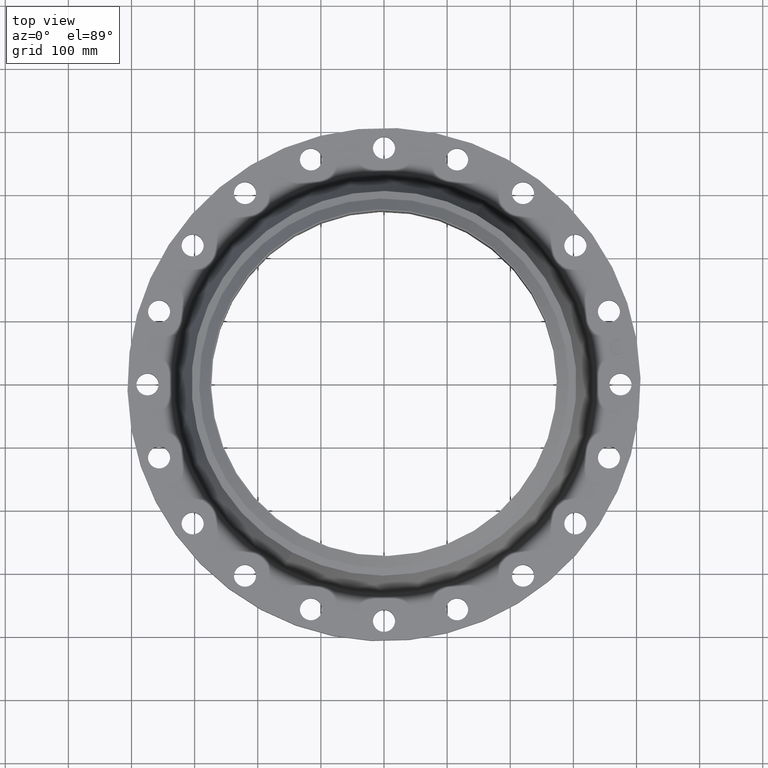
[diagram: clean part render]
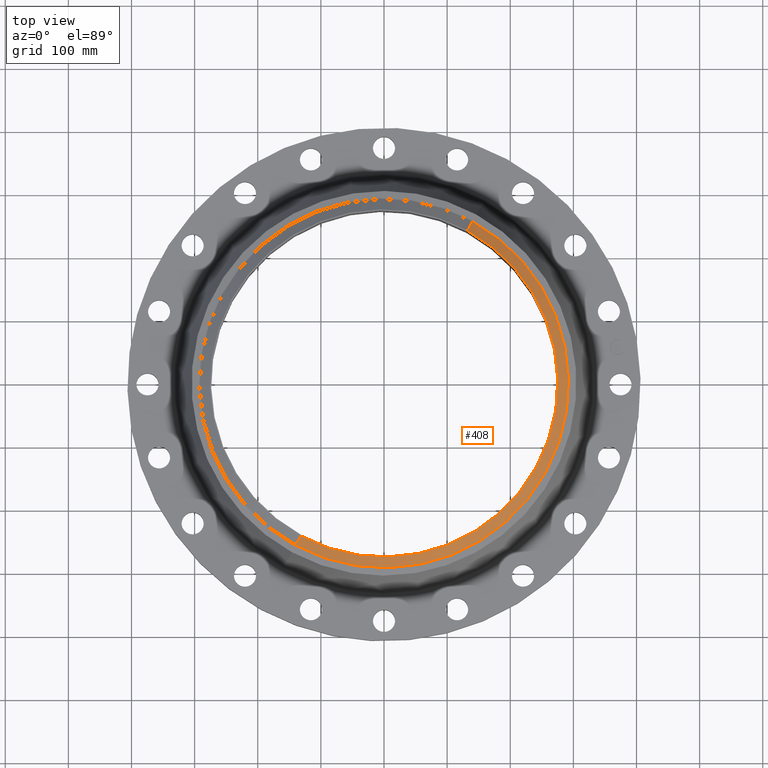
[diagram: same view with one face highlighted and labeled with its STEP entity id]
A machine part, top view. The second image highlights one B-rep face of the part: STEP entity #408.
In plain terms, the highlighted conical surface has half-angle 52.5 deg.
Its self-contained STEP definition (entity closure, byte-faithful):
#356=AXIS2_PLACEMENT_3D('Circle Axis2P3D',#354,#355,$) ;
#381=AXIS2_PLACEMENT_3D('Cone Axis2P3D',#378,#379,#380) ;
#399=AXIS2_PLACEMENT_3D('Circle Axis2P3D',#397,#398,$) ;
#344=CARTESIAN_POINT('Vertex',(-5.51662188622,-10.0981086281,5.49108306753)) ;
#351=CARTESIAN_POINT('Vertex',(5.51662188622,10.0981086281,5.49108306753)) ;
#354=CARTESIAN_POINT('Axis2P3D Location',(0.,0.,5.49108306753)) ;
#378=CARTESIAN_POINT('Axis2P3D Location',(0.,0.,6.00000000002)) ;
#383=CARTESIAN_POINT('Line Origine',(-5.35763635705,-9.80708756898,5.74554153378)) ;
#387=CARTESIAN_POINT('Vertex',(-5.19865082788,-9.5160665099,6.00000000002)) ;
#390=CARTESIAN_POINT('Line Origine',(5.35763635705,9.80708756898,5.74554153378)) ;
#394=CARTESIAN_POINT('Vertex',(5.19865082788,9.5160665099,6.00000000002)) ;
#397=CARTESIAN_POINT('Axis2P3D Location',(0.,0.,6.00000000002)) ;
#355=DIRECTION('Axis2P3D Direction',(0.,-0.,-0.0393700787402)) ;
#379=DIRECTION('Axis2P3D Direction',(-0.,-0.,-0.0393700787402)) ;
#380=DIRECTION('Axis2P3D XDirection',(-0.0188750212049,-0.0345504945626,0.)) ;
#384=DIRECTION('Vector Direction',(-0.014974561121,-0.02741075027,-0.023966985394)) ;
#391=DIRECTION('Vector Direction',(0.014974561121,0.02741075027,-0.023966985394)) ;
#398=DIRECTION('Axis2P3D Direction',(0.,-0.,-0.0393700787402)) ;
#385=VECTOR('Line Direction',#384,0.0393700787402) ;
#392=VECTOR('Line Direction',#391,0.0393700787402) ;
#403=ORIENTED_EDGE('',*,*,#389,.T.) ;
#404=ORIENTED_EDGE('',*,*,#358,.F.) ;
#405=ORIENTED_EDGE('',*,*,#396,.F.) ;
#406=ORIENTED_EDGE('',*,*,#401,.T.) ;
#408=ADVANCED_FACE('PartBody',(#407),#382,.T.) ;
#357=CIRCLE('generated circle',#356,11.5067334591) ;
#400=CIRCLE('generated circle',#399,10.8435) ;
#382=CONICAL_SURFACE('Cone',#381,10.8435,0.916297857297) ;
#358=EDGE_CURVE('',#352,#345,#357,.T.) ;
#389=EDGE_CURVE('',#388,#345,#386,.T.) ;
#396=EDGE_CURVE('',#395,#352,#393,.T.) ;
#401=EDGE_CURVE('',#395,#388,#400,.T.) ;
#402=EDGE_LOOP('',(#403,#404,#405,#406)) ;
#407=FACE_OUTER_BOUND('',#402,.T.) ;
#386=LINE('Line',#383,#385) ;
#393=LINE('Line',#390,#392) ;
#345=VERTEX_POINT('',#344) ;
#352=VERTEX_POINT('',#351) ;
#388=VERTEX_POINT('',#387) ;
#395=VERTEX_POINT('',#394) ;